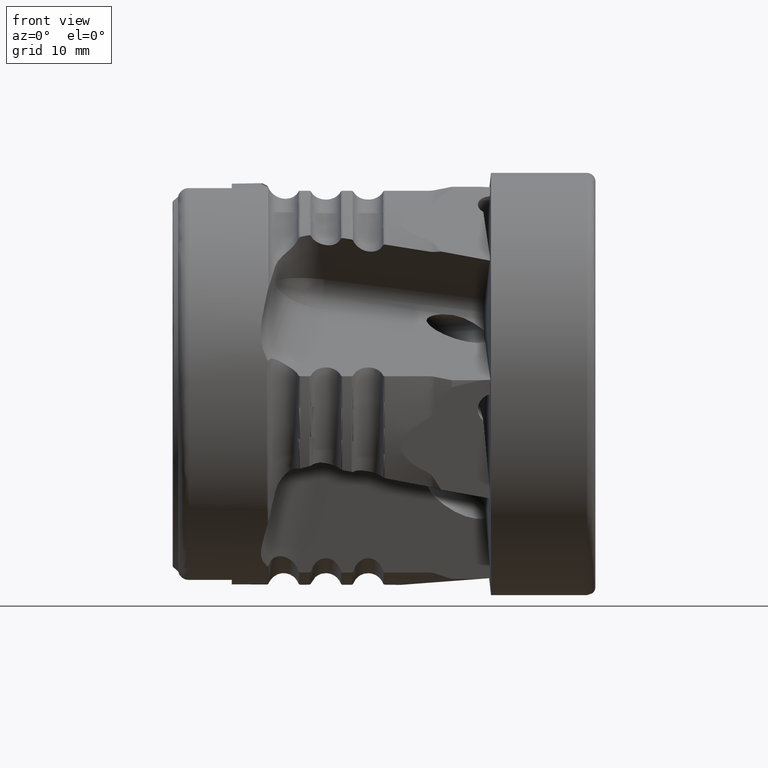
[diagram: clean part render]
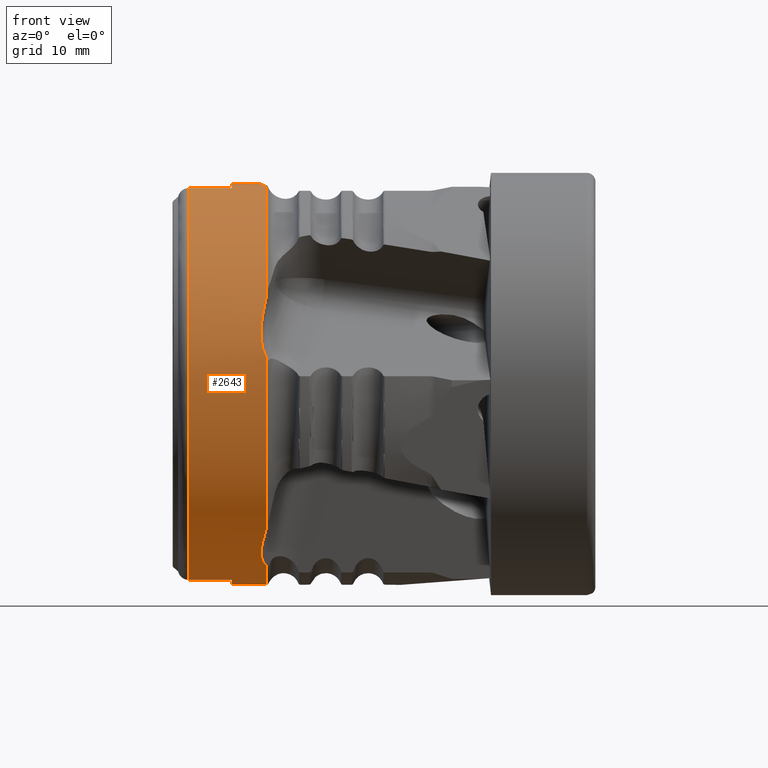
[diagram: same view with one face highlighted and labeled with its STEP entity id]
A machine part, front view. The second image highlights one B-rep face of the part: STEP entity #2643.
In plain terms, the highlighted cylindrical surface (bore or boss wall) has radius 19 mm, axis along (1, -0, -0).
Its self-contained STEP definition (entity closure, byte-faithful):
#45 = EDGE_CURVE ( 'NONE', #7668, #3270, #3889, .T. ) ;
#51 = CARTESIAN_POINT ( 'NONE',  ( -30.49059737205868000, -13.31631333657391800, -13.55270449475615500 ) ) ;
#103 =( BOUNDED_CURVE ( )  B_SPLINE_CURVE ( 3, ( #5677, #6559, #10759, #5753 ),
 .UNSPECIFIED., .F., .T. ) 
 B_SPLINE_CURVE_WITH_KNOTS ( ( 4, 4 ),
 ( 2.050832906267260600, 2.170066506620913500 ),
 .UNSPECIFIED. ) 
 CURVE ( )  GEOMETRIC_REPRESENTATION_ITEM ( )  RATIONAL_B_SPLINE_CURVE ( ( 1.000000000000000000, 0.9988156298949256700, 0.9988156298949256700, 1.000000000000000000 ) ) 
 REPRESENTATION_ITEM ( '' )  );
#157 = CARTESIAN_POINT ( 'NONE',  ( -30.96276559778232600, 12.91463369978693800, -13.94016590375802500 ) ) ;
#170 = CARTESIAN_POINT ( 'NONE',  ( -30.49059737205868000, 0.0000000000000000000, 0.0000000000000000000 ) ) ;
#189 = CARTESIAN_POINT ( 'NONE',  ( -31.06320411126327100, -18.40822423935910700, 4.718120525705546500 ) ) ;
#215 = ORIENTED_EDGE ( 'NONE', *, *, #3691, .F. ) ;
#239 = DIRECTION ( 'NONE',  ( -1.000000000000000000, -0.0000000000000000000, -0.0000000000000000000 ) ) ;
#258 = ORIENTED_EDGE ( 'NONE', *, *, #5161, .T. ) ;
#277 = DIRECTION ( 'NONE',  ( 0.0000000000000000000, -8.881784197001252300E-016, -1.000000000000000000 ) ) ;
#299 = CYLINDRICAL_SURFACE ( 'NONE', #8876, 19.00000000000000000 ) ;
#303 = CARTESIAN_POINT ( 'NONE',  ( -37.90023802096011000, 16.17776970916617100, 10.18992090826366100 ) ) ;
#321 = EDGE_CURVE ( 'NONE', #9763, #4522, #5690, .T. ) ;
#341 = CARTESIAN_POINT ( 'NONE',  ( -31.01028168513688100, -0.1493421884201095200, 19.00265278523076200 ) ) ;
#410 = EDGE_CURVE ( 'NONE', #602, #8915, #9851, .T. ) ;
#421 = CARTESIAN_POINT ( 'NONE',  ( -30.90345421912288500, 18.23297878418853600, 5.344013908601930900 ) ) ;
#452 = DIRECTION ( 'NONE',  ( -1.000000000000000000, -0.0000000000000000000, -0.0000000000000000000 ) ) ;
#462 = CARTESIAN_POINT ( 'NONE',  ( -37.90023802096011000, -13.51397998591336400, 13.52505326495356300 ) ) ;
#464 = ORIENTED_EDGE ( 'NONE', *, *, #10219, .T. ) ;
#474 = EDGE_CURVE ( 'NONE', #1464, #3990, #6868, .T. ) ;
#480 = CARTESIAN_POINT ( 'NONE',  ( -30.90345421912288500, -11.60965713096419300, -15.04047410494271600 ) ) ;
#495 = CARTESIAN_POINT ( 'NONE',  ( -37.90011901045763000, -4.200000000898290500, -18.52997571483714600 ) ) ;
#569 = FACE_OUTER_BOUND ( 'NONE', #2728, .T. ) ;
#602 = VERTEX_POINT ( 'NONE', #9676 ) ;
#668 = CARTESIAN_POINT ( 'NONE',  ( -30.90345421912288500, 18.23297878418853600, 5.344013908601930900 ) ) ;
#673 = AXIS2_PLACEMENT_3D ( 'NONE', #3799, #9591, #4595 ) ;
#706 = CARTESIAN_POINT ( 'NONE',  ( -33.79999999999999700, 4.199999999999995700, 18.52997571504075200 ) ) ;
#711 = CARTESIAN_POINT ( 'NONE',  ( -30.63305173811317800, 9.444615899503837400, -16.50364058321641600 ) ) ;
#721 = VERTEX_POINT ( 'NONE', #4152 ) ;
#768 = EDGE_CURVE ( 'NONE', #4592, #7668, #9453, .T. ) ;
#912 = CARTESIAN_POINT ( 'NONE',  ( -37.90023802096010300, 6.281383623266189700, -18.05820978549220600 ) ) ;
#1009 = CARTESIAN_POINT ( 'NONE',  ( -31.06320411126327100, 12.11932458235810200, -14.63712241559327700 ) ) ;
#1038 = CARTESIAN_POINT ( 'NONE',  ( -30.96276559778233000, -9.267044331642837900, -16.59029470441488400 ) ) ;
#1045 = CARTESIAN_POINT ( 'NONE',  ( -31.01028168513690600, -18.11874603248693900, 5.730109787387948300 ) ) ;
#1092 = CARTESIAN_POINT ( 'NONE',  ( -33.79999999999999700, -4.200000000000003700, -18.52997571504075200 ) ) ;
#1104 = CARTESIAN_POINT ( 'NONE',  ( -30.49059737205868000, -8.088350012844838200, -17.19239931102441700 ) ) ;
#1123 = CARTESIAN_POINT ( 'NONE',  ( -37.90023802096011700, 16.17776970919608500, -10.18992090821616300 ) ) ;
#1152 = CARTESIAN_POINT ( 'NONE',  ( -37.90023802096011000, 18.63705264597171400, 4.267902242409286700 ) ) ;
#1157 = CARTESIAN_POINT ( 'NONE',  ( -30.49059737205868000, -3.561826149699025100, 18.66315606962874100 ) ) ;
#1200 = CARTESIAN_POINT ( 'NONE',  ( -30.90345421912288500, 0.5518410514442715400, 18.99198440010787400 ) ) ;
#1259 = B_SPLINE_CURVE_WITH_KNOTS ( 'NONE', 3,
 ( #4297, #5929, #4332, #10167, #5159, #189, #6004, #1045, #6846, #1878 ),
 .UNSPECIFIED., .F., .F.,
 ( 4, 2, 2, 2, 4 ),
 ( 3.469446951953613800E-018, 0.001053540399753489400, 0.002107080799506975300, 0.003160621199260461200, 0.004214161599013947100 ),
 .UNSPECIFIED. ) ;
#1282 = VERTEX_POINT ( 'NONE', #1104 ) ;
#1314 = CARTESIAN_POINT ( 'NONE',  ( -37.90023802096009600, -17.22578667537388600, 8.296203607313964700 ) ) ;
#1315 = EDGE_CURVE ( 'NONE', #7428, #4522, #8100, .T. ) ;
#1464 = VERTEX_POINT ( 'NONE', #8088 ) ;
#1582 = CARTESIAN_POINT ( 'NONE',  ( -30.49059737205868000, 2.807043961014588100, 18.79150085014317300 ) ) ;
#1586 = B_SPLINE_CURVE_WITH_KNOTS ( 'NONE', 3,
 ( #3487, #10129, #5125, #157, #5969, #1009, #6816, #1842, #7637, #2673 ),
 .UNSPECIFIED., .F., .F.,
 ( 4, 2, 2, 2, 4 ),
 ( 2.453269466693398700E-018, 0.001053540399753486800, 0.002107080799506971400, 0.003160621199260456000, 0.004214161599013940100 ),
 .UNSPECIFIED. ) ;
#1621 = ORIENTED_EDGE ( 'NONE', *, *, #5752, .F. ) ;
#1631 = EDGE_CURVE ( 'NONE', #1464, #3270, #5974, .T. ) ;
#1688 = ORIENTED_EDGE ( 'NONE', *, *, #1315, .T. ) ;
#1823 = CARTESIAN_POINT ( 'NONE',  ( -30.77083387217517800, -12.20778812929702200, -14.57878016088257500 ) ) ;
#1842 = CARTESIAN_POINT ( 'NONE',  ( -31.01028168513688100, 11.29029943000205600, -15.28568790555975100 ) ) ;
#1872 = CARTESIAN_POINT ( 'NONE',  ( -31.06320411126327100, -10.17565339686494900, -16.04928219231263100 ) ) ;
#1878 = CARTESIAN_POINT ( 'NONE',  ( -30.90345421912288900, -17.89192225800849900, 6.393677964472410700 ) ) ;
#1959 = CARTESIAN_POINT ( 'NONE',  ( -37.90023802096011700, 17.22578667579942600, 8.296203606429541500 ) ) ;
#1998 = CARTESIAN_POINT ( 'NONE',  ( -30.49059737205868000, 0.0000000000000000000, 0.0000000000000000000 ) ) ;
#2024 = CARTESIAN_POINT ( 'NONE',  ( -30.49059737205868000, 18.73920362240566500, 3.137235661855579200 ) ) ;
#2032 = CARTESIAN_POINT ( 'NONE',  ( -30.90345421912288500, 10.71675955333987700, -15.68920216823973700 ) ) ;
#2053 = CARTESIAN_POINT ( 'NONE',  ( -30.63305173811318100, 18.61444173755162600, 3.882458085858066600 ) ) ;
#2130 = CARTESIAN_POINT ( 'NONE',  ( -37.90023802096011000, -18.99999999988883600, 2.134179206093582200 ) ) ;
#2166 = ORIENTED_EDGE ( 'NONE', *, *, #768, .F. ) ;
#2341 = CIRCLE ( 'NONE', #9027, 19.00000000000000000 ) ;
#2425 = CARTESIAN_POINT ( 'NONE',  ( -30.96276559778233300, 17.24872691036613000, 7.974798367079977800 ) ) ;
#2427 = CARTESIAN_POINT ( 'NONE',  ( -33.79999999999999700, 0.0000000000000000000, 0.0000000000000000000 ) ) ;
#2643 = ADVANCED_FACE ( 'NONE', ( #569, #9662 ), #299, .T. ) ;
#2663 = CARTESIAN_POINT ( 'NONE',  ( -30.90345421912288500, -11.60965713096419300, -15.04047410494271600 ) ) ;
#2673 = CARTESIAN_POINT ( 'NONE',  ( -30.90345421912288500, 10.71675955333987700, -15.68920216823973700 ) ) ;
#2684 = CARTESIAN_POINT ( 'NONE',  ( -2.460562448771868600E-016, 4.199999999999997500, 18.52997571504075200 ) ) ;
#2698 = CARTESIAN_POINT ( 'NONE',  ( -37.90023802096011000, 13.51397998665434000, -13.52505326421265700 ) ) ;
#2701 = CARTESIAN_POINT ( 'NONE',  ( -31.01028168513688100, -11.04865869318402700, -15.46125017735660200 ) ) ;
#2728 = EDGE_LOOP ( 'NONE', ( #10116, #464, #9060, #10134, #6842, #4815, #2806, #258, #5994, #10488, #10165, #1621, #6891, #2961, #215 ) ) ;
#2752 = B_SPLINE_CURVE_WITH_KNOTS ( 'NONE', 3,
 ( #1157, #6128, #3671, #9461, #4464, #10331, #5316, #341, #6164, #1200 ),
 .UNSPECIFIED., .F., .F.,
 ( 4, 2, 2, 2, 4 ),
 ( 3.035766082959412400E-018, 0.001053540399753485500, 0.002107080799506967900, 0.003160621199260450300, 0.004214161599013933200 ),
 .UNSPECIFIED. ) ;
#2796 = CARTESIAN_POINT ( 'NONE',  ( -37.90011901047972700, 4.199999999945601000, 18.52997571505308400 ) ) ;
#2806 = ORIENTED_EDGE ( 'NONE', *, *, #8220, .T. ) ;
#2827 = DIRECTION ( 'NONE',  ( 0.0000000000000000000, -1.776356839400250500E-015, -1.000000000000000000 ) ) ;
#2961 = ORIENTED_EDGE ( 'NONE', *, *, #7684, .T. ) ;
#2977 = CIRCLE ( 'NONE', #4992, 19.00000000000000000 ) ;
#2982 = CARTESIAN_POINT ( 'NONE',  ( -37.90023802096011000, -18.63705264619912300, -4.267902241417925100 ) ) ;
#2985 = VERTEX_POINT ( 'NONE', #5264 ) ;
#3043 = DIRECTION ( 'NONE',  ( 1.000000000000000000, -0.0000000000000000000, -0.0000000000000000000 ) ) ;
#3079 = DIRECTION ( 'NONE',  ( 0.0000000000000000000, 0.0000000000000000000, -1.000000000000000000 ) ) ;
#3175 = CIRCLE ( 'NONE', #673, 19.00000000000000000 ) ;
#3213 = CARTESIAN_POINT ( 'NONE',  ( -30.66244528173962900, 16.80013981598390100, 8.879956669976508000 ) ) ;
#3232 = CARTESIAN_POINT ( 'NONE',  ( -30.90345421912288500, 10.71675955333987700, -15.68920216823973700 ) ) ;
#3267 = CARTESIAN_POINT ( 'NONE',  ( -30.90345421912288500, 0.5518410514442715400, 18.99198440010787400 ) ) ;
#3270 = VERTEX_POINT ( 'NONE', #7504 ) ;
#3293 = CARTESIAN_POINT ( 'NONE',  ( -31.06320411126327500, 17.66580790945453900, 7.003043041982958300 ) ) ;
#3297 = DIRECTION ( 'NONE',  ( 0.0000000000000000000, 0.0000000000000000000, -1.000000000000000000 ) ) ;
#3487 = CARTESIAN_POINT ( 'NONE',  ( -30.49059737205868000, 13.85150578507606100, -13.00522154697890500 ) ) ;
#3503 = ORIENTED_EDGE ( 'NONE', *, *, #45, .F. ) ;
#3554 = CARTESIAN_POINT ( 'NONE',  ( -30.90345421912288500, -11.60965713096419300, -15.04047410494271600 ) ) ;
#3578 = AXIS2_PLACEMENT_3D ( 'NONE', #9051, #4092, #9919 ) ;
#3628 = CARTESIAN_POINT ( 'NONE',  ( -37.90023802096011700, 6.281383623213169000, 18.05820978551065900 ) ) ;
#3671 = CARTESIAN_POINT ( 'NONE',  ( -30.78589393479467500, -2.929110758677247800, 18.77595002090098900 ) ) ;
#3691 = EDGE_CURVE ( 'NONE', #4415, #2985, #6066, .T. ) ;
#3776 = CARTESIAN_POINT ( 'NONE',  ( -37.90023802096011000, -6.281383622263661000, 18.05820978584133500 ) ) ;
#3799 = CARTESIAN_POINT ( 'NONE',  ( -30.49059737205868000, 0.0000000000000000000, 0.0000000000000000000 ) ) ;
#3813 = CARTESIAN_POINT ( 'NONE',  ( -37.90023802096011700, -16.17776970970310700, -10.18992090741192400 ) ) ;
#3889 = LINE ( 'NONE', #4578, #9995 ) ;
#3990 = VERTEX_POINT ( 'NONE', #8799 ) ;
#3992 = EDGE_LOOP ( 'NONE', ( #8550, #9581, #3503, #2166, #8777, #1688, #9148, #8979 ) ) ;
#4029 = CARTESIAN_POINT ( 'NONE',  ( -30.49059737205868000, 16.64905138338780300, 9.154730363768923200 ) ) ;
#4092 = DIRECTION ( 'NONE',  ( -1.000000000000000000, -0.0000000000000000000, -0.0000000000000000000 ) ) ;
#4094 = CARTESIAN_POINT ( 'NONE',  ( -31.01028168513688100, 18.02644748408902200, 6.014175510297405000 ) ) ;
#4152 = CARTESIAN_POINT ( 'NONE',  ( -30.90345421912288900, -17.89192225800849900, 6.393677964472410700 ) ) ;
#4174 = CARTESIAN_POINT ( 'NONE',  ( -30.49059737205868000, -3.561826149699025100, 18.66315606962874100 ) ) ;
#4195 = EDGE_CURVE ( 'NONE', #5870, #5665, #10094, .T. ) ;
#4201 = CARTESIAN_POINT ( 'NONE',  ( -37.90023802096010300, 8.282091895716462200, -17.23257597431072300 ) ) ;
#4236 = VERTEX_POINT ( 'NONE', #8598 ) ;
#4264 = CIRCLE ( 'NONE', #3578, 19.00000000000000000 ) ;
#4297 = CARTESIAN_POINT ( 'NONE',  ( -30.49059737205868000, -18.85038100591995700, 2.379734424605421900 ) ) ;
#4332 = CARTESIAN_POINT ( 'NONE',  ( -30.78589393479467200, -18.76213461984778200, 3.016337768002747700 ) ) ;
#4415 = VERTEX_POINT ( 'NONE', #6392 ) ;
#4464 = CARTESIAN_POINT ( 'NONE',  ( -31.01546761361657900, -1.901421714375155500, 18.90788133043242400 ) ) ;
#4522 = VERTEX_POINT ( 'NONE', #10737 ) ;
#4548 =( BOUNDED_CURVE ( )  B_SPLINE_CURVE ( 3, ( #2024, #2053, #5386, #421 ),
 .UNSPECIFIED., .F., .T. ) 
 B_SPLINE_CURVE_WITH_KNOTS ( ( 4, 4 ),
 ( 2.050832906267262300, 2.170066506620914800 ),
 .UNSPECIFIED. ) 
 CURVE ( )  GEOMETRIC_REPRESENTATION_ITEM ( )  RATIONAL_B_SPLINE_CURVE ( ( 1.000000000000000000, 0.9988156298949256700, 0.9988156298949256700, 1.000000000000000000 ) ) 
 REPRESENTATION_ITEM ( '' )  );
#4553 = VERTEX_POINT ( 'NONE', #7468 ) ;
#4578 = CARTESIAN_POINT ( 'NONE',  ( 7.381687346315606900E-016, -4.199999999999998400, -18.52997571504075200 ) ) ;
#4592 = VERTEX_POINT ( 'NONE', #7539 ) ;
#4595 = DIRECTION ( 'NONE',  ( 0.0000000000000000000, 0.0000000000000000000, -1.000000000000000000 ) ) ;
#4608 = CARTESIAN_POINT ( 'NONE',  ( -37.90023802096010300, -11.89877660032131100, -14.96575545353938500 ) ) ;
#4622 = VECTOR ( 'NONE', #10674, 1000.000000000000000 ) ;
#4739 = DIRECTION ( 'NONE',  ( -1.000000000000000000, -0.0000000000000000000, -0.0000000000000000000 ) ) ;
#4788 = DIRECTION ( 'NONE',  ( 1.000000000000000000, -0.0000000000000000000, -0.0000000000000000000 ) ) ;
#4793 = VERTEX_POINT ( 'NONE', #2032 ) ;
#4815 = ORIENTED_EDGE ( 'NONE', *, *, #7980, .F. ) ;
#4915 = CARTESIAN_POINT ( 'NONE',  ( -30.90345421912288500, 18.23297878418853600, 5.344013908601930900 ) ) ;
#4992 = AXIS2_PLACEMENT_3D ( 'NONE', #1998, #7806, #2827 ) ;
#5123 = CARTESIAN_POINT ( 'NONE',  ( -30.49059737205868000, -13.31631333657391800, -13.55270449475615500 ) ) ;
#5125 = CARTESIAN_POINT ( 'NONE',  ( -30.78589393479466800, 13.40592690224246300, -13.46837454616191300 ) ) ;
#5152 = CARTESIAN_POINT ( 'NONE',  ( -30.66244528173962500, -8.372091047397662000, -17.05891027561115400 ) ) ;
#5159 = CARTESIAN_POINT ( 'NONE',  ( -31.01546761361658300, -18.57003537185872200, 4.034497147046749000 ) ) ;
#5161 = EDGE_CURVE ( 'NONE', #1282, #5665, #9286, .T. ) ;
#5264 = CARTESIAN_POINT ( 'NONE',  ( -30.90345421912288500, 0.5518410514442715400, 18.99198440010787400 ) ) ;
#5278 = CARTESIAN_POINT ( 'NONE',  ( -37.90023802096011700, 8.282091895665862700, 17.23257597433504200 ) ) ;
#5316 = CARTESIAN_POINT ( 'NONE',  ( -31.05932827188938100, -0.8508567527439598900, 18.98418180358559900 ) ) ;
#5346 = CIRCLE ( 'NONE', #6390, 19.00000000000000000 ) ;
#5386 = CARTESIAN_POINT ( 'NONE',  ( -30.77083387217517400, 18.44550003531094600, 4.618923081898266500 ) ) ;
#5434 = CARTESIAN_POINT ( 'NONE',  ( -37.90023802096011700, -11.89877659876220800, 14.96575545477898400 ) ) ;
#5474 = CARTESIAN_POINT ( 'NONE',  ( -37.90023802096010300, -6.281383624144910800, -18.05820978518695300 ) ) ;
#5504 = CARTESIAN_POINT ( 'NONE',  ( -33.79999999999999700, 0.0000000000000000000, 0.0000000000000000000 ) ) ;
#5539 = VERTEX_POINT ( 'NONE', #7703 ) ;
#5665 = VERTEX_POINT ( 'NONE', #480 ) ;
#5677 = CARTESIAN_POINT ( 'NONE',  ( -30.49059737205868000, -17.00435504658351600, 8.476550563155374400 ) ) ;
#5690 = LINE ( 'NONE', #2684, #7643 ) ;
#5752 = EDGE_CURVE ( 'NONE', #602, #721, #103, .T. ) ;
#5753 = CARTESIAN_POINT ( 'NONE',  ( -30.90345421912288900, -17.89192225800849900, 6.393677964472410700 ) ) ;
#5870 = VERTEX_POINT ( 'NONE', #5123 ) ;
#5879 = CARTESIAN_POINT ( 'NONE',  ( -37.90023802096011000, 11.89877659958490200, -14.96575545412439300 ) ) ;
#5929 = CARTESIAN_POINT ( 'NONE',  ( -30.66244528173962500, -18.81110619061457400, 2.690838564962635200 ) ) ;
#5969 = CARTESIAN_POINT ( 'NONE',  ( -31.01546761361657500, 12.65205627852734000, -14.17916968184630600 ) ) ;
#5974 = B_SPLINE_CURVE_WITH_KNOTS ( 'NONE', 3,
 ( #9567, #3776, #10446, #5434, #462, #6284, #1314, #7116, #2130, #7947, #2982, #8772, #3813, #9610, #4608, #10485, #5474, #495 ),
 .UNSPECIFIED., .F., .F.,
 ( 4, 2, 2, 2, 2, 2, 2, 2, 4 ),
 ( 0.5354746295056771500, 0.5891059721271853000, 0.6427373147486934400, 0.6963686573702015900, 0.7499999999917097400, 0.8036313426132180000, 0.8572626852347260400, 0.9108940278562343000, 0.9645253704777425600 ),
 .UNSPECIFIED. ) ;
#5994 = ORIENTED_EDGE ( 'NONE', *, *, #4195, .F. ) ;
#5998 = CARTESIAN_POINT ( 'NONE',  ( -30.78589393479466800, -8.666526137889663400, -16.91175075872529700 ) ) ;
#6004 = CARTESIAN_POINT ( 'NONE',  ( -31.05932827188938100, -18.31795900720854700, 5.057221942480649300 ) ) ;
#6027 = AXIS2_PLACEMENT_3D ( 'NONE', #5504, #452, #7105 ) ;
#6066 =( BOUNDED_CURVE ( )  B_SPLINE_CURVE ( 3, ( #1582, #6557, #8217, #3267 ),
 .UNSPECIFIED., .F., .F. ) 
 B_SPLINE_CURVE_WITH_KNOTS ( ( 4, 4 ),
 ( 2.050832906267261900, 2.170066506620913500 ),
 .UNSPECIFIED. ) 
 CURVE ( )  GEOMETRIC_REPRESENTATION_ITEM ( )  RATIONAL_B_SPLINE_CURVE ( ( 1.000000000000000000, 0.9988156298949256700, 0.9988156298949256700, 1.000000000000000000 ) ) 
 REPRESENTATION_ITEM ( '' )  );
#6079 = CARTESIAN_POINT ( 'NONE',  ( -37.90023802096011000, 17.22578667582377700, -8.296203606378968600 ) ) ;
#6122 = CARTESIAN_POINT ( 'NONE',  ( -37.90023802096011700, 13.51397998661462700, 13.52505326425233700 ) ) ;
#6128 = CARTESIAN_POINT ( 'NONE',  ( -30.66244528173962900, -3.253811944385593500, 18.72193996699705600 ) ) ;
#6153 = EDGE_CURVE ( 'NONE', #7795, #4793, #1586, .T. ) ;
#6164 = CARTESIAN_POINT ( 'NONE',  ( -30.96474515370250600, 0.2027881816690247100, 19.00212666321258200 ) ) ;
#6167 = EDGE_CURVE ( 'NONE', #4236, #721, #1259, .T. ) ;
#6284 = CARTESIAN_POINT ( 'NONE',  ( -37.90023802096010300, -16.17776970864153800, 10.18992090909728200 ) ) ;
#6372 = EDGE_CURVE ( 'NONE', #4415, #4553, #2341, .T. ) ;
#6390 = AXIS2_PLACEMENT_3D ( 'NONE', #2427, #8242, #3297 ) ;
#6392 = CARTESIAN_POINT ( 'NONE',  ( -30.49059737205868000, 2.807043961014588100, 18.79150085014317300 ) ) ;
#6557 = CARTESIAN_POINT ( 'NONE',  ( -30.63305173811317800, 2.059741775907616600, 18.90313164017353000 ) ) ;
#6559 = CARTESIAN_POINT ( 'NONE',  ( -30.63305173811318500, -17.34145131199265700, 7.800319761582638700 ) ) ;
#6713 = CARTESIAN_POINT ( 'NONE',  ( -30.63305173811318500, -12.77734810097043500, -14.08226890439803800 ) ) ;
#6816 = CARTESIAN_POINT ( 'NONE',  ( -31.05932827188938100, 11.84697966373519800, -14.85840465232808900 ) ) ;
#6839 = CARTESIAN_POINT ( 'NONE',  ( -31.01546761361657500, -9.575491317721224900, -16.41442496604306500 ) ) ;
#6842 = ORIENTED_EDGE ( 'NONE', *, *, #6153, .T. ) ;
#6846 = CARTESIAN_POINT ( 'NONE',  ( -30.96474515370250900, -18.00943139212011000, 6.064843089801915900 ) ) ;
#6864 = DIRECTION ( 'NONE',  ( -1.000000000000000000, 0.0000000000000000000, 0.0000000000000000000 ) ) ;
#6868 = LINE ( 'NONE', #9244, #4622 ) ;
#6891 = ORIENTED_EDGE ( 'NONE', *, *, #410, .T. ) ;
#6931 = CARTESIAN_POINT ( 'NONE',  ( -37.90023802096011700, 18.63705264598424800, -4.267902242354568700 ) ) ;
#7105 = DIRECTION ( 'NONE',  ( 0.0000000000000000000, 0.0000000000000000000, -1.000000000000000000 ) ) ;
#7116 = CARTESIAN_POINT ( 'NONE',  ( -37.90023802096011700, -18.63705264575450500, 4.267902243359501700 ) ) ;
#7410 = CARTESIAN_POINT ( 'NONE',  ( -30.78589393479466500, 16.95184461417226600, 8.587837515983242300 ) ) ;
#7428 = VERTEX_POINT ( 'NONE', #9022 ) ;
#7446 = EDGE_CURVE ( 'NONE', #5870, #4236, #4264, .T. ) ;
#7468 = CARTESIAN_POINT ( 'NONE',  ( -30.49059737205868000, 16.64905138338780300, 9.154730363768923200 ) ) ;
#7504 = CARTESIAN_POINT ( 'NONE',  ( -37.90011901045763000, -4.200000000898290500, -18.52997571483714600 ) ) ;
#7539 = CARTESIAN_POINT ( 'NONE',  ( -33.79999999999999700, 4.199999999999995700, -18.52997571504075200 ) ) ;
#7590 = DIRECTION ( 'NONE',  ( -1.000000000000000000, 0.0000000000000000000, 0.0000000000000000000 ) ) ;
#7637 = CARTESIAN_POINT ( 'NONE',  ( -30.96474515370250600, 11.00511072960122000, -15.49223930232861900 ) ) ;
#7643 = VECTOR ( 'NONE', #7590, 1000.000000000000000 ) ;
#7668 = VERTEX_POINT ( 'NONE', #1092 ) ;
#7671 = CARTESIAN_POINT ( 'NONE',  ( -31.05932827188938100, -10.47026451823810000, -15.85864675448080500 ) ) ;
#7676 = EDGE_CURVE ( 'NONE', #10465, #7795, #2977, .T. ) ;
#7684 = EDGE_CURVE ( 'NONE', #8915, #2985, #2752, .T. ) ;
#7703 = CARTESIAN_POINT ( 'NONE',  ( -30.49059737205868000, 8.774420799737166400, -16.85258258039816700 ) ) ;
#7760 = CARTESIAN_POINT ( 'NONE',  ( -37.90023802096011000, 11.89877659954096600, 14.96575545415933200 ) ) ;
#7795 = VERTEX_POINT ( 'NONE', #8763 ) ;
#7806 = DIRECTION ( 'NONE',  ( -1.000000000000000000, -0.0000000000000000000, -0.0000000000000000000 ) ) ;
#7936 = LINE ( 'NONE', #9781, #9890 ) ;
#7947 = CARTESIAN_POINT ( 'NONE',  ( -37.90023802096011700, -19.00000000011116800, -2.134179204114227800 ) ) ;
#7980 = EDGE_CURVE ( 'NONE', #5539, #4793, #9858, .T. ) ;
#8088 = CARTESIAN_POINT ( 'NONE',  ( -37.90011901048005400, -4.199999998967892400, 18.52997571527469100 ) ) ;
#8100 = B_SPLINE_CURVE_WITH_KNOTS ( 'NONE', 3,
 ( #10028, #912, #4201, #5879, #2698, #1123, #6079, #6931, #10282, #8584, #1152, #1959, #303, #6122, #7760, #5278, #3628, #2796 ),
 .UNSPECIFIED., .F., .F.,
 ( 4, 2, 2, 2, 2, 2, 2, 2, 4 ),
 ( 0.03547462951454205500, 0.08910597213596495300, 0.1427373147573878500, 0.1963686573788107600, 0.2500000000002336500, 0.3036313426216565300, 0.3572626852430794700, 0.4108940278645023500, 0.4645253704859252400 ),
 .UNSPECIFIED. ) ;
#8107 = AXIS2_PLACEMENT_3D ( 'NONE', #170, #239, #277 ) ;
#8184 = CARTESIAN_POINT ( 'NONE',  ( -30.77083387217517100, 10.09282987596014900, -16.11538727688772400 ) ) ;
#8217 = CARTESIAN_POINT ( 'NONE',  ( -30.77083387217517100, 1.307116085349301100, 18.97003873292222700 ) ) ;
#8220 = EDGE_CURVE ( 'NONE', #5539, #1282, #3175, .T. ) ;
#8240 = CARTESIAN_POINT ( 'NONE',  ( -31.01546761361657500, 17.39489212542778800, 7.651216170409956200 ) ) ;
#8242 = DIRECTION ( 'NONE',  ( -1.000000000000000000, -0.0000000000000000000, -0.0000000000000000000 ) ) ;
#8467 = CARTESIAN_POINT ( 'NONE',  ( -30.49059737205868000, -8.088350012844838200, -17.19239931102441700 ) ) ;
#8497 = CARTESIAN_POINT ( 'NONE',  ( -30.96474515370250600, -11.33322890005848600, -15.25384749728010200 ) ) ;
#8504 = B_SPLINE_CURVE_WITH_KNOTS ( 'NONE', 3,
 ( #4029, #3213, #7410, #2425, #8240, #3293, #9054, #4094, #9923, #4915 ),
 .UNSPECIFIED., .F., .F.,
 ( 4, 2, 2, 2, 4 ),
 ( 1.734723475976806900E-018, 0.001053540399753483900, 0.002107080799506966200, 0.003160621199260450800, 0.004214161599013935800 ),
 .UNSPECIFIED. ) ;
#8550 = ORIENTED_EDGE ( 'NONE', *, *, #474, .F. ) ;
#8584 = CARTESIAN_POINT ( 'NONE',  ( -37.90023802096011700, 18.99999999999687000, 2.134179205128401400 ) ) ;
#8598 = CARTESIAN_POINT ( 'NONE',  ( -30.49059737205868000, -18.85038100591995700, 2.379734424605421900 ) ) ;
#8763 = CARTESIAN_POINT ( 'NONE',  ( -30.49059737205868000, 13.85150578507606100, -13.00522154697890500 ) ) ;
#8772 = CARTESIAN_POINT ( 'NONE',  ( -37.90023802096011000, -17.22578667623817900, -8.296203605519414400 ) ) ;
#8777 = ORIENTED_EDGE ( 'NONE', *, *, #9721, .F. ) ;
#8796 = CARTESIAN_POINT ( 'NONE',  ( -30.49059737205868000, 18.73920362240566500, 3.137235661855579200 ) ) ;
#8799 = CARTESIAN_POINT ( 'NONE',  ( -33.79999999999999700, -4.200000000000003700, 18.52997571504075200 ) ) ;
#8855 = EDGE_CURVE ( 'NONE', #3990, #9763, #5346, .T. ) ;
#8864 = CARTESIAN_POINT ( 'NONE',  ( 0.0000000000000000000, 0.0000000000000000000, 0.0000000000000000000 ) ) ;
#8876 = AXIS2_PLACEMENT_3D ( 'NONE', #8864, #3043, #3079 ) ;
#8915 = VERTEX_POINT ( 'NONE', #4174 ) ;
#8979 = ORIENTED_EDGE ( 'NONE', *, *, #8855, .F. ) ;
#9022 = CARTESIAN_POINT ( 'NONE',  ( -37.90011901048005400, 4.200000000000005500, -18.52997571504075200 ) ) ;
#9027 = AXIS2_PLACEMENT_3D ( 'NONE', #9734, #4739, #10611 ) ;
#9051 = CARTESIAN_POINT ( 'NONE',  ( -30.49059737205868000, 0.0000000000000000000, 0.0000000000000000000 ) ) ;
#9054 = CARTESIAN_POINT ( 'NONE',  ( -31.05932827188938100, 17.79210061445541100, 6.675647660742417800 ) ) ;
#9060 = ORIENTED_EDGE ( 'NONE', *, *, #10369, .F. ) ;
#9148 = ORIENTED_EDGE ( 'NONE', *, *, #321, .F. ) ;
#9244 = CARTESIAN_POINT ( 'NONE',  ( 7.381687346315606900E-016, -4.199999999999998400, 18.52997571504075200 ) ) ;
#9286 = B_SPLINE_CURVE_WITH_KNOTS ( 'NONE', 3,
 ( #8467, #5152, #5998, #1038, #6839, #1872, #7671, #2701, #8497, #3554 ),
 .UNSPECIFIED., .F., .F.,
 ( 4, 2, 2, 2, 4 ),
 ( 4.906538933386797400E-018, 0.001053540399753487200, 0.002107080799506969200, 0.003160621199260451200, 0.004214161599013934100 ),
 .UNSPECIFIED. ) ;
#9453 = CIRCLE ( 'NONE', #6027, 19.00000000000000000 ) ;
#9461 = CARTESIAN_POINT ( 'NONE',  ( -30.96276559778232600, -2.254334206515796100, 18.86886234804056500 ) ) ;
#9567 = CARTESIAN_POINT ( 'NONE',  ( -37.90011901048005400, -4.199999998967892400, 18.52997571527469100 ) ) ;
#9581 = ORIENTED_EDGE ( 'NONE', *, *, #1631, .T. ) ;
#9591 = DIRECTION ( 'NONE',  ( -1.000000000000000000, -0.0000000000000000000, -0.0000000000000000000 ) ) ;
#9610 = CARTESIAN_POINT ( 'NONE',  ( -37.90023802096010300, -13.51397998732236300, -13.52505326354570600 ) ) ;
#9662 = FACE_OUTER_BOUND ( 'NONE', #3992, .T. ) ;
#9676 = CARTESIAN_POINT ( 'NONE',  ( -30.49059737205868000, -17.00435504658351600, 8.476550563155374400 ) ) ;
#9721 = EDGE_CURVE ( 'NONE', #7428, #4592, #7936, .T. ) ;
#9734 = CARTESIAN_POINT ( 'NONE',  ( -30.49059737205868000, 0.0000000000000000000, 0.0000000000000000000 ) ) ;
#9742 = VERTEX_POINT ( 'NONE', #668 ) ;
#9763 = VERTEX_POINT ( 'NONE', #706 ) ;
#9781 = CARTESIAN_POINT ( 'NONE',  ( -2.460562448771868600E-016, 4.199999999999997500, -18.52997571504075200 ) ) ;
#9851 = CIRCLE ( 'NONE', #8107, 19.00000000000000000 ) ;
#9858 =( BOUNDED_CURVE ( )  B_SPLINE_CURVE ( 3, ( #10698, #711, #8184, #3232 ),
 .UNSPECIFIED., .F., .T. ) 
 B_SPLINE_CURVE_WITH_KNOTS ( ( 4, 4 ),
 ( 2.050832906267261900, 2.170066506620913500 ),
 .UNSPECIFIED. ) 
 CURVE ( )  GEOMETRIC_REPRESENTATION_ITEM ( )  RATIONAL_B_SPLINE_CURVE ( ( 1.000000000000000000, 0.9988156298949256700, 0.9988156298949256700, 1.000000000000000000 ) ) 
 REPRESENTATION_ITEM ( '' )  );
#9890 = VECTOR ( 'NONE', #4788, 1000.000000000000000 ) ;
#9919 = DIRECTION ( 'NONE',  ( 0.0000000000000000000, 0.0000000000000000000, -1.000000000000000000 ) ) ;
#9923 = CARTESIAN_POINT ( 'NONE',  ( -30.96474515370250600, 18.13476138090835100, 5.679117046593981800 ) ) ;
#9995 = VECTOR ( 'NONE', #6864, 1000.000000000000000 ) ;
#10028 = CARTESIAN_POINT ( 'NONE',  ( -37.90011901048005400, 4.200000000000005500, -18.52997571504075200 ) ) ;
#10094 =( BOUNDED_CURVE ( )  B_SPLINE_CURVE ( 3, ( #51, #6713, #1823, #2663 ),
 .UNSPECIFIED., .F., .F. ) 
 B_SPLINE_CURVE_WITH_KNOTS ( ( 4, 4 ),
 ( 2.050832906267262300, 2.170066506620914800 ),
 .UNSPECIFIED. ) 
 CURVE ( )  GEOMETRIC_REPRESENTATION_ITEM ( )  RATIONAL_B_SPLINE_CURVE ( ( 1.000000000000000000, 0.9988156298949256700, 0.9988156298949256700, 1.000000000000000000 ) ) 
 REPRESENTATION_ITEM ( '' )  );
#10116 = ORIENTED_EDGE ( 'NONE', *, *, #6372, .T. ) ;
#10129 = CARTESIAN_POINT ( 'NONE',  ( -30.66244528173962900, 13.63686936641396700, -13.23382492632528300 ) ) ;
#10134 = ORIENTED_EDGE ( 'NONE', *, *, #7676, .T. ) ;
#10165 = ORIENTED_EDGE ( 'NONE', *, *, #6167, .T. ) ;
#10167 = CARTESIAN_POINT ( 'NONE',  ( -30.96276559778233000, -18.64198207199440900, 3.686799893052129700 ) ) ;
#10219 = EDGE_CURVE ( 'NONE', #4553, #9742, #8504, .T. ) ;
#10282 = CARTESIAN_POINT ( 'NONE',  ( -37.90023802096011000, 19.00000000000313300, -2.134179205072621600 ) ) ;
#10331 = CARTESIAN_POINT ( 'NONE',  ( -31.06320411126327100, -1.201254855588563400, 18.96524104021716500 ) ) ;
#10369 = EDGE_CURVE ( 'NONE', #10465, #9742, #4548, .T. ) ;
#10446 = CARTESIAN_POINT ( 'NONE',  ( -37.90023802096011000, -8.282091894762961800, 17.23257597476940400 ) ) ;
#10465 = VERTEX_POINT ( 'NONE', #8796 ) ;
#10485 = CARTESIAN_POINT ( 'NONE',  ( -37.90023802096010300, -8.282091896558217300, -17.23257597390658400 ) ) ;
#10488 = ORIENTED_EDGE ( 'NONE', *, *, #7446, .T. ) ;
#10611 = DIRECTION ( 'NONE',  ( 0.0000000000000000000, 0.0000000000000000000, -1.000000000000000000 ) ) ;
#10674 = DIRECTION ( 'NONE',  ( 1.000000000000000000, -0.0000000000000000000, -0.0000000000000000000 ) ) ;
#10698 = CARTESIAN_POINT ( 'NONE',  ( -30.49059737205868000, 8.774420799737166400, -16.85258258039816700 ) ) ;
#10737 = CARTESIAN_POINT ( 'NONE',  ( -37.90011901047972700, 4.199999999945601000, 18.52997571505308400 ) ) ;
#10759 = CARTESIAN_POINT ( 'NONE',  ( -30.77083387217517800, -17.63765786732337300, 7.105205622949577900 ) ) ;